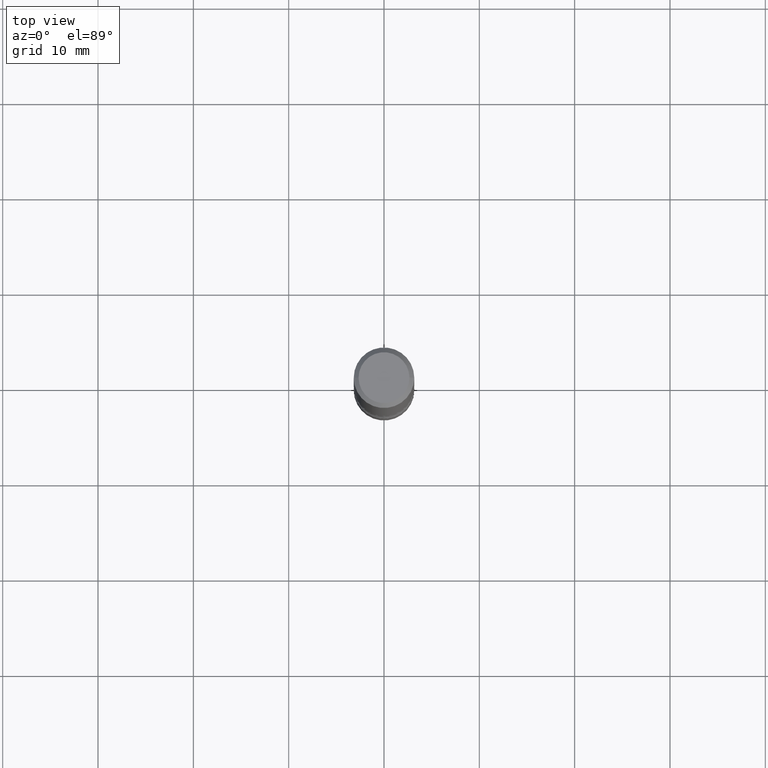
[diagram: clean part render]
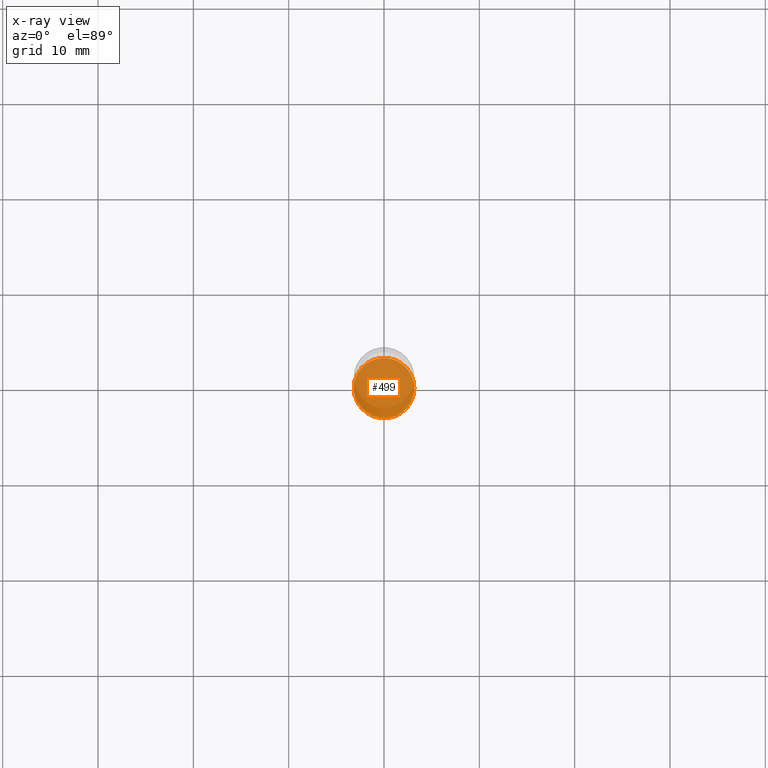
[diagram: x-ray — body ghosted, one internal face saturated and labeled with its STEP entity id]
A machine part, top view, then the same camera in x-ray: the body is ghosted and one INTERNAL B-rep face — a face not visible from any outside direction — is saturated and labeled: STEP entity #499.
In plain terms, the highlighted planar face has unit normal (0, -0, -1).
Its self-contained STEP definition (entity closure, byte-faithful):
#5 = AXIS2_PLACEMENT_3D ( 'NONE', #119, #492, #537 ) ;
#7 = CARTESIAN_POINT ( 'NONE',  ( 0.1250000000000000555, -9.601573681818646704E-15, -2.499999999999999556 ) ) ;
#8 = EDGE_LOOP ( 'NONE', ( #316, #487 ) ) ;
#15 = CIRCLE ( 'NONE', #5, 0.1250000000000000555 ) ;
#27 = VERTEX_POINT ( 'NONE', #63 ) ;
#36 = DIRECTION ( 'NONE',  ( 1.000000000000000000, -6.982962677686267499E-15, 0.000000000000000000 ) ) ;
#38 = CIRCLE ( 'NONE', #82, 0.1250000000000000555 ) ;
#56 = PLANE ( 'NONE',  #418 ) ;
#63 = CARTESIAN_POINT ( 'NONE',  ( -0.1250000000000000555, -8.661023042035876364E-15, -2.499999999999999556 ) ) ;
#82 = AXIS2_PLACEMENT_3D ( 'NONE', #198, #503, #36 ) ;
#119 = CARTESIAN_POINT ( 'NONE',  ( 6.113672015462840371E-29, -8.728703347107863365E-15, -2.499999999999999556 ) ) ;
#164 = EDGE_CURVE ( 'NONE', #489, #27, #15, .T. ) ;
#198 = CARTESIAN_POINT ( 'NONE',  ( 6.113672015462840371E-29, -8.728703347107863365E-15, -2.499999999999999556 ) ) ;
#199 = EDGE_CURVE ( 'NONE', #27, #489, #38, .T. ) ;
#222 = DIRECTION ( 'NONE',  ( -1.000000000000000000, 6.982962677686265922E-15, -4.876176775795935793E-29 ) ) ;
#269 = CARTESIAN_POINT ( 'NONE',  ( 1.374422904781070061E-28, 2.198688627549184381E-15, -2.500000000000000000 ) ) ;
#316 = ORIENTED_EDGE ( 'NONE', *, *, #164, .T. ) ;
#359 = FACE_OUTER_BOUND ( 'NONE', #8, .T. ) ;
#418 = AXIS2_PLACEMENT_3D ( 'NONE', #269, #472, #222 ) ;
#472 = DIRECTION ( 'NONE',  ( 2.438088387897960049E-29, -3.491481338843145188E-15, -1.000000000000000000 ) ) ;
#487 = ORIENTED_EDGE ( 'NONE', *, *, #199, .T. ) ;
#489 = VERTEX_POINT ( 'NONE', #7 ) ;
#492 = DIRECTION ( 'NONE',  ( -2.445468806185136597E-29, 3.491481338843145583E-15, 1.000000000000000000 ) ) ;
#499 = ADVANCED_FACE ( 'NONE', ( #359 ), #56, .F. ) ;
#503 = DIRECTION ( 'NONE',  ( -2.445468806185136597E-29, 3.491481338843145583E-15, 1.000000000000000000 ) ) ;
#537 = DIRECTION ( 'NONE',  ( 1.000000000000000000, -6.982962677686267499E-15, 0.000000000000000000 ) ) ;